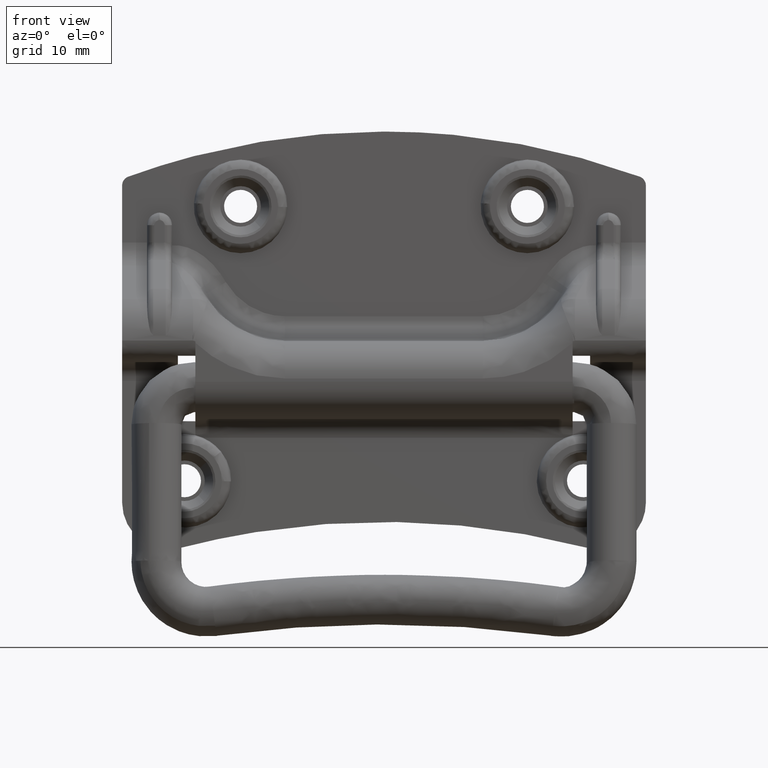
[diagram: clean part render]
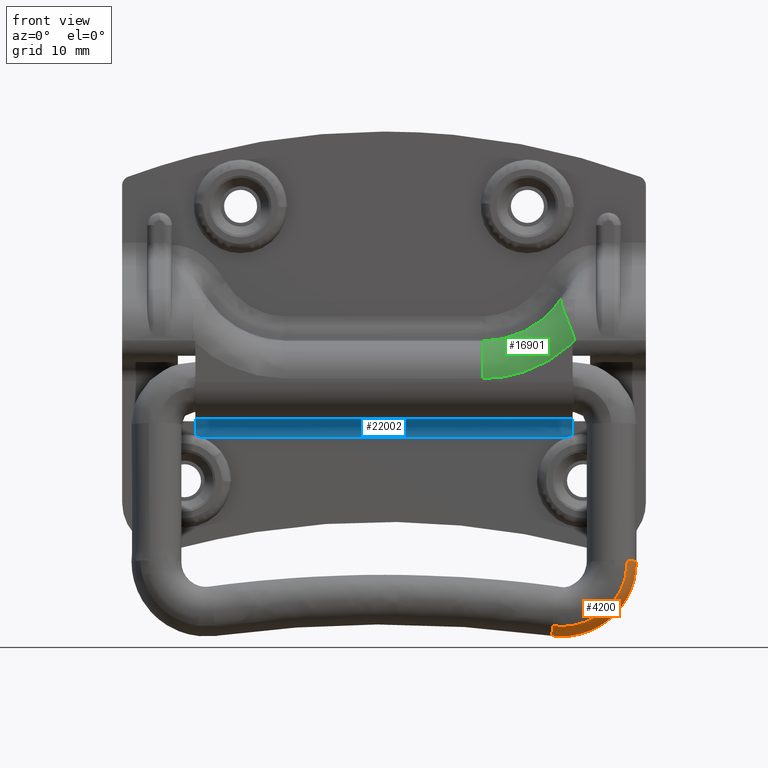
[diagram: same view with three faces highlighted in distinct colors, each labeled with its STEP entity id]
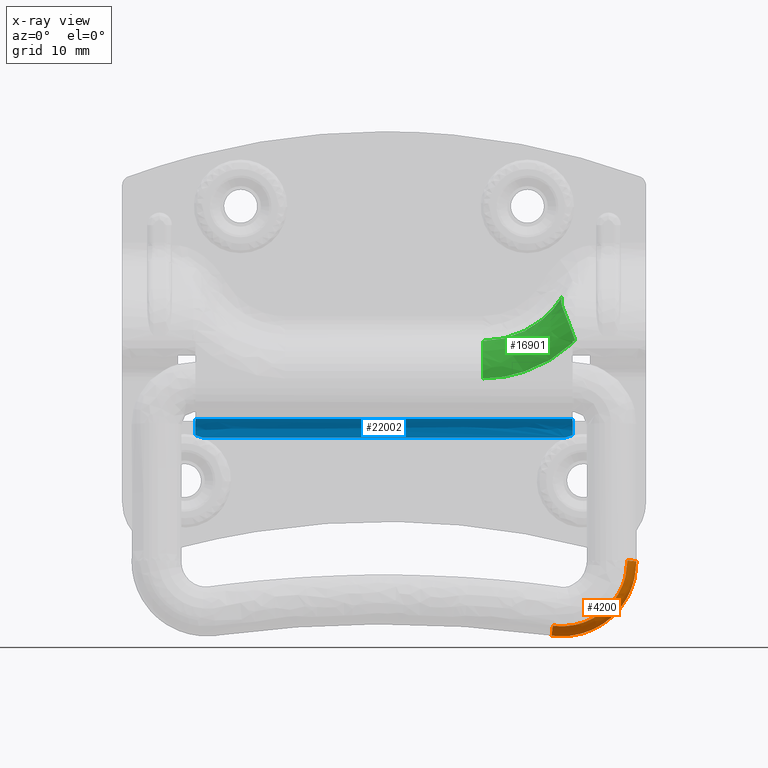
[diagram: x-ray of the same camera — body ghosted, the three highlighted faces saturated]
A machine part, front view with three faces highlighted in distinct colors.
The next image is the same camera in x-ray (body ghosted, the three faces saturated) — at least one of them is partly hidden behind the body in this view.
Their STEP definitions:

[orange] entity #4200 — the highlighted face is a freeform B-spline surface patch.
#370=CARTESIAN_POINT('',(39.046568005698873,-4.868273884451001,-27.803628752492578));
#371=VERTEX_POINT('',#370);
#379=CARTESIAN_POINT('',(40.491848355661268,-2.044662121670512,-27.984134870324731));
#380=VERTEX_POINT('',#379);
#381=CARTESIAN_POINT('',(40.491848355661268,-2.044662121670512,-27.984134870324731));
#382=CARTESIAN_POINT('',(40.463884654577818,-2.485358115274249,-27.955962327626679));
#383=CARTESIAN_POINT('',(40.298410210355968,-3.189290384835915,-27.910961778022049));
#384=CARTESIAN_POINT('',(39.775631836215723,-4.149230671410812,-27.849595305207149));
#385=CARTESIAN_POINT('',(39.335367195164913,-4.630518885659626,-27.818827807969239));
#386=CARTESIAN_POINT('',(39.046568005698873,-4.868273884451001,-27.803628752492578));
#387=B_SPLINE_CURVE_WITH_KNOTS('',3,(#381,#382,#383,#384,#385,#386),.UNSPECIFIED.,.F.,.U.,(4,1,1,4),(0.000000052922181,1.327353058861302,2.144149547443520,3.267294799860814),.UNSPECIFIED.);
#388=EDGE_CURVE('',#380,#371,#387,.T.);
#2484=CARTESIAN_POINT('',(26.886812739208501,-2.803786349880205,-39.858924079284080));
#2485=VERTEX_POINT('',#2484);
#2562=CARTESIAN_POINT('',(27.081499919456778,-5.536007033325207,-38.249206928678227));
#2563=VERTEX_POINT('',#2562);
#2564=CARTESIAN_POINT('',(26.886812739208501,-2.803786349880205,-39.858924079284080));
#2565=CARTESIAN_POINT('',(26.895812034931051,-3.842498396530935,-39.726187467713252));
#2566=CARTESIAN_POINT('',(26.962707231972001,-4.820171489100040,-39.170597999566247));
#2567=CARTESIAN_POINT('',(27.072849004278861,-5.486417950092665,-38.316143556759883));
#2568=CARTESIAN_POINT('',(27.077145593943300,-5.511491121109123,-38.282870218250082));
#2569=CARTESIAN_POINT('',(27.081499919456778,-5.536007033325207,-38.249206928678227));
#2570=B_SPLINE_CURVE_WITH_KNOTS('',3,(#2564,#2565,#2566,#2567,#2568,#2569),.UNSPECIFIED.,.F.,.U.,(4,2,4),(0.0,0.125000000000000,0.130000045329009),.UNSPECIFIED.);
#2571=EDGE_CURVE('',#2485,#2563,#2570,.T.);
#4003=CARTESIAN_POINT('',(39.046568005698873,-4.868273884451001,-27.803628752492578));
#4004=CARTESIAN_POINT('',(39.046513554098738,-4.963976716911212,-29.300708712287509));
#4005=CARTESIAN_POINT('',(38.722911846562063,-5.059603038833214,-30.796597894134258));
#4006=CARTESIAN_POINT('',(37.484555983047123,-5.233939878448324,-33.523773334448279));
#4007=CARTESIAN_POINT('',(36.570478657816132,-5.312534762076703,-34.753250716438792));
#4008=CARTESIAN_POINT('',(34.313202854340702,-5.438631607263543,-36.725826779553067));
#4009=CARTESIAN_POINT('',(32.971207005609863,-5.486061770299226,-37.467802293366447));
#4010=CARTESIAN_POINT('',(30.097967769506479,-5.541214146518877,-38.330605186502758));
#4011=CARTESIAN_POINT('',(28.568676172914451,-5.548902915559828,-38.450909374299151));
#4012=CARTESIAN_POINT('',(27.081499919456778,-5.536007033325207,-38.249206928678227));
#4013=B_SPLINE_CURVE_WITH_KNOTS('',3,(#4003,#4004,#4005,#4006,#4007,#4008,#4009,#4010,#4011,#4012),.UNSPECIFIED.,.F.,.U.,(4,2,2,2,4),(0.250956728499712,0.271613374401856,0.292270020304000,0.312926666206144,0.333583312108288),.UNSPECIFIED.);
#4014=EDGE_CURVE('',#371,#2563,#4013,.T.);
#4021=CARTESIAN_POINT('',(40.491848355661283,-2.044662121670508,-27.984134870324731));
#4022=CARTESIAN_POINT('',(40.491784727129279,-2.153441077437905,-29.685736692031419));
#4023=CARTESIAN_POINT('',(40.123993922781970,-2.262134673948198,-31.386003261646149));
#4024=CARTESIAN_POINT('',(38.716327879979403,-2.460312678025643,-34.486051892447271));
#4025=CARTESIAN_POINT('',(37.677206805136919,-2.549666281571530,-35.883787819899283));
#4026=CARTESIAN_POINT('',(35.110741610073603,-2.693040873772085,-38.126560474278868));
#4027=CARTESIAN_POINT('',(33.584753961876920,-2.746979198847470,-38.970304115639017));
#4028=CARTESIAN_POINT('',(30.317311544590378,-2.809703405644117,-39.951483093107527));
#4029=CARTESIAN_POINT('',(28.578091771242018,-2.818450100888617,-40.088305457789247));
#4030=CARTESIAN_POINT('',(26.886812739208501,-2.803786349880205,-39.858924079284080));
#4031=B_SPLINE_CURVE_WITH_KNOTS('',3,(#4021,#4022,#4023,#4024,#4025,#4026,#4027,#4028,#4029,#4030),.UNSPECIFIED.,.F.,.U.,(4,2,2,2,4),(0.250956728499712,0.271613374401856,0.292270020304000,0.312926666206144,0.333583312108288),.UNSPECIFIED.);
#4032=EDGE_CURVE('',#380,#2485,#4031,.T.);
#4039=CARTESIAN_POINT('',(40.491969785257183,-1.998990493331501,-27.782026297705901));
#4040=CARTESIAN_POINT('',(40.481915834831057,-2.183520208526782,-27.770404366539172));
#4041=CARTESIAN_POINT('',(40.435104534663608,-2.550670857743982,-27.747739897755160));
#4042=CARTESIAN_POINT('',(40.289929359996400,-3.087046107468984,-27.715962528357480));
#4043=CARTESIAN_POINT('',(40.071674610449222,-3.598709106055742,-27.686985460688909));
#4044=CARTESIAN_POINT('',(39.816469676138567,-4.022302471744887,-27.664237976351831));
#4045=CARTESIAN_POINT('',(39.590112711429647,-4.315327109653733,-27.649344595746818));
#4046=CARTESIAN_POINT('',(39.426350731009897,-4.499706239422042,-27.640341502859581));
#4047=CARTESIAN_POINT('',(39.254135834123517,-4.676254770539800,-27.631984679873518));
#4048=CARTESIAN_POINT('',(39.115986348396973,-4.799615321747100,-27.626455164508180));
#4049=CARTESIAN_POINT('',(39.019905098481637,-4.877188509195548,-27.623133806349902));
#4050=CARTESIAN_POINT('',(40.495435409713217,-2.011583460739842,-27.978637438526562));
#4051=CARTESIAN_POINT('',(40.484954783465682,-2.196020587581797,-27.966852997013351));
#4052=CARTESIAN_POINT('',(40.438627605860823,-2.563172170509287,-27.943410232433759));
#4053=CARTESIAN_POINT('',(40.293437435556193,-3.099373681849964,-27.909226783281479));
#4054=CARTESIAN_POINT('',(40.075488345013447,-3.611198711643119,-27.876646057074289));
#4055=CARTESIAN_POINT('',(39.819587655845382,-4.034351816328450,-27.849755074862529));
#4056=CARTESIAN_POINT('',(39.593252750498117,-4.327149226181737,-27.831179349911039));
#4057=CARTESIAN_POINT('',(39.429273887472327,-4.511169031299214,-27.819518645190531));
#4058=CARTESIAN_POINT('',(39.257008988497823,-4.687487262037839,-27.808355812927221));
#4059=CARTESIAN_POINT('',(39.118740709435187,-4.810563623795540,-27.800575814359430));
#4060=CARTESIAN_POINT('',(39.022936014725232,-4.888368391480111,-27.795662931384200));
#4061=CARTESIAN_POINT('',(40.493071718111757,-2.030436737970484,-28.273652274133330));
#4062=CARTESIAN_POINT('',(40.483318152951973,-2.214980121427615,-28.261609945379039));
#4063=CARTESIAN_POINT('',(40.436332550262939,-2.581900962980938,-28.237025348964739));
#4064=CARTESIAN_POINT('',(40.291737063737607,-3.118067797583538,-28.199216858500471));
#4065=CARTESIAN_POINT('',(40.073726392439347,-3.629651533641192,-28.161260434270190));
#4066=CARTESIAN_POINT('',(39.817895108963931,-4.052653336323912,-28.128119407177579));
#4067=CARTESIAN_POINT('',(39.591055916210017,-4.344722788978868,-28.104042443645710));
#4068=CARTESIAN_POINT('',(39.427231282877990,-4.528633107555865,-28.088365732804760));
#4069=CARTESIAN_POINT('',(39.255135087427277,-4.704743411917926,-28.072982827188120));
#4070=CARTESIAN_POINT('',(39.116938823269003,-4.827693120563009,-28.061804311200440));
#4071=CARTESIAN_POINT('',(39.020758023537731,-4.904869883034419,-28.054565176644040));
#4072=CARTESIAN_POINT('',(40.475373180316481,-2.055555044356746,-28.666546592609059));
#4073=CARTESIAN_POINT('',(40.465554302683820,-2.240104463954046,-28.654170912610880));
#4074=CARTESIAN_POINT('',(40.419078127990950,-2.607159428497222,-28.628023626844620));
#4075=CARTESIAN_POINT('',(40.274361626648563,-3.143244295777099,-28.585384088996150));
#4076=CARTESIAN_POINT('',(40.056280976167031,-3.653820700824900,-28.540311350540279));
#4077=CARTESIAN_POINT('',(39.801471295234840,-4.076258594035090,-28.498870772649301));
#4078=CARTESIAN_POINT('',(39.575244938076452,-4.368226784218382,-28.467412571399059));
#4079=CARTESIAN_POINT('',(39.411441312775452,-4.551722740373411,-28.446406039177671));
#4080=CARTESIAN_POINT('',(39.239362545953981,-4.727437691443883,-28.425411863310490));
#4081=CARTESIAN_POINT('',(39.101186335844183,-4.849940814424143,-28.409728187082230));
#4082=CARTESIAN_POINT('',(39.005150989739718,-4.926991401021441,-28.399344915246580));
#4083=CARTESIAN_POINT('',(40.447949271080347,-2.080633057733391,-29.058891845822341));
#4084=CARTESIAN_POINT('',(40.438264230988473,-2.265217717322901,-29.046184999576109));
#4085=CARTESIAN_POINT('',(40.392157363766522,-2.632404791210735,-29.018470245483659));
#4086=CARTESIAN_POINT('',(40.247210752336372,-3.167944445626692,-28.971040839630231));
#4087=CARTESIAN_POINT('',(40.029608085546514,-3.677953680694483,-28.918831170274000));
#4088=CARTESIAN_POINT('',(39.775527529873060,-4.099863170697086,-28.869100505043541));
#4089=CARTESIAN_POINT('',(39.550077201566772,-4.391514042651494,-28.830285857846722));
#4090=CARTESIAN_POINT('',(39.386743279189680,-4.574770762866685,-28.803945111351549));
#4091=CARTESIAN_POINT('',(39.214938318965210,-4.750110463081376,-28.777345473811870));
#4092=CARTESIAN_POINT('',(39.076919878389603,-4.872259787209640,-28.757156979694368));
#4093=CARTESIAN_POINT('',(38.981003139714332,-4.949041017970299,-28.743643249103091));
#4094=CARTESIAN_POINT('',(40.353667274159257,-2.136893479491666,-29.939043130719931));
#4095=CARTESIAN_POINT('',(40.344217649279841,-2.321567279565573,-29.925580333936612));
#4096=CARTESIAN_POINT('',(40.298500969100111,-2.688669593883134,-29.894393832116339));
#4097=CARTESIAN_POINT('',(40.153988425547233,-3.223189206573815,-29.836192379920490));
#4098=CARTESIAN_POINT('',(39.937916795918113,-3.731930951257011,-29.767968109049200));
#4099=CARTESIAN_POINT('',(39.686248996540513,-4.152765338630061,-29.699628575715309));
#4100=CARTESIAN_POINT('',(39.462949640824192,-4.443596943538272,-29.644316762082369));
#4101=CARTESIAN_POINT('',(39.300984003314099,-4.626184637195955,-29.606019993242640));
#4102=CARTESIAN_POINT('',(39.130549579750237,-4.800791983720155,-29.566840318584578));
#4103=CARTESIAN_POINT('',(38.993427988682001,-4.922232615597015,-29.536537468705571));
#4104=CARTESIAN_POINT('',(38.898116142819852,-4.998508786624626,-29.515995046488481));
#4105=CARTESIAN_POINT('',(40.073081147032227,-2.223301751502643,-31.290677601479040));
#4106=CARTESIAN_POINT('',(40.063813097469811,-2.407922014886253,-31.276059591113569));
#4107=CARTESIAN_POINT('',(40.019069198612172,-2.774680582925129,-31.239540074438921));
#4108=CARTESIAN_POINT('',(39.877822145094967,-3.307996040053661,-31.164791066259099));
#4109=CARTESIAN_POINT('',(39.666822854501198,-3.815092433863573,-31.071956128571671));
#4110=CARTESIAN_POINT('',(39.421232658400633,-4.234150521567589,-30.975042322315041));
#4111=CARTESIAN_POINT('',(39.203301009615693,-4.523415966848432,-30.894407358306569));
#4112=CARTESIAN_POINT('',(39.045214341101243,-4.704874740641400,-30.837748209741310));
#4113=CARTESIAN_POINT('',(38.878811799500390,-4.878281097019082,-30.779249056376290));
#4114=CARTESIAN_POINT('',(38.744919827627932,-4.998767335796052,-30.733411089435560));
#4115=CARTESIAN_POINT('',(38.651835536738197,-5.074371467166552,-30.702070217552599));
#4116=CARTESIAN_POINT('',(39.078525237897900,-2.396748801626729,-34.003892324592087));
#4117=CARTESIAN_POINT('',(39.070106860210693,-2.581248527769676,-33.986965606881647));
#4118=CARTESIAN_POINT('',(39.029264877801623,-2.947353526010420,-33.939743550831743));
#4119=CARTESIAN_POINT('',(38.900096837166728,-3.478519578808746,-33.831735549658362));
#4120=CARTESIAN_POINT('',(38.707177745357590,-3.982392611599096,-33.689489776853989));
#4121=CARTESIAN_POINT('',(38.482682662451701,-4.397765955438067,-33.535217103021687));
#4122=CARTESIAN_POINT('',(38.283455233389532,-4.683814707938661,-33.403753031241322));
#4123=CARTESIAN_POINT('',(38.138893514107302,-4.862940585102395,-33.310245679191752));
#4124=CARTESIAN_POINT('',(37.986720979049387,-5.033888526454627,-33.212960597175332));
#4125=CARTESIAN_POINT('',(37.864245972775272,-5.152367656914056,-33.135895986825894));
#4126=CARTESIAN_POINT('',(37.779099919864997,-5.226582489918545,-33.082857640582738));
#4127=CARTESIAN_POINT('',(36.638797863273808,-2.606585134800243,-37.285906235405221));
#4128=CARTESIAN_POINT('',(36.632251923118112,-2.790782891409740,-37.266172450019518));
#4129=CARTESIAN_POINT('',(36.600717978823120,-3.155860092393668,-37.205967313256757));
#4130=CARTESIAN_POINT('',(36.501253100335248,-3.684298768278067,-37.057659436845412));
#4131=CARTESIAN_POINT('',(36.352726422106628,-4.184332356670458,-36.855538490143132));
#4132=CARTESIAN_POINT('',(36.179916654437747,-4.595338635224867,-36.631795240021262));
#4133=CARTESIAN_POINT('',(36.026580047067533,-4.877539991668305,-36.438771206146072));
#4134=CARTESIAN_POINT('',(35.915337331188873,-5.053887623317540,-36.300623150442959));
#4135=CARTESIAN_POINT('',(35.798232716452702,-5.221923595684171,-36.156377812501752));
#4136=CARTESIAN_POINT('',(35.703990401011900,-5.338093489719468,-36.041573444959177));
#4137=CARTESIAN_POINT('',(35.638463946333736,-5.410699217939055,-35.962296645585752));
#4138=CARTESIAN_POINT('',(32.791110362682147,-2.742624854324973,-39.413311394952721));
#4139=CARTESIAN_POINT('',(32.787423958349272,-2.926437268213224,-39.391707077779337));
#4140=CARTESIAN_POINT('',(32.770374961115799,-3.290514742106581,-39.322993039076081));
#4141=CARTESIAN_POINT('',(32.717442654726050,-3.816834989566472,-39.148421237717912));
#4142=CARTESIAN_POINT('',(32.638957681740322,-4.314192852980916,-38.907431480042362));
#4143=CARTESIAN_POINT('',(32.547932524789907,-4.722407414469299,-38.638612463065577));
#4144=CARTESIAN_POINT('',(32.467302806254636,-5.002308446195656,-38.405667809809259));
#4145=CARTESIAN_POINT('',(32.408849406815257,-5.177045248571593,-38.238585610190327));
#4146=CARTESIAN_POINT('',(32.347346058924451,-5.343418759467674,-38.063893081687127));
#4147=CARTESIAN_POINT('',(32.297877590511803,-5.458279512378084,-37.924590636919397));
#4148=CARTESIAN_POINT('',(32.263496300278710,-5.529991425779977,-37.828290100469772));
#4149=CARTESIAN_POINT('',(29.784748051696251,-2.777513174621836,-39.959178693676570));
#4150=CARTESIAN_POINT('',(29.783663930555861,-2.961354353663552,-39.937157452168023));
#4151=CARTESIAN_POINT('',(29.778616082905089,-3.325394824320356,-39.866347316233977));
#4152=CARTESIAN_POINT('',(29.762836371387031,-3.851389912635066,-39.685137101994997));
#4153=CARTESIAN_POINT('',(29.739357887784809,-4.348169429872619,-39.434127275551283));
#4154=CARTESIAN_POINT('',(29.712089596262771,-4.755635345258320,-39.153692526212033));
#4155=CARTESIAN_POINT('',(29.687915332879840,-5.034813950365815,-38.910454189302548));
#4156=CARTESIAN_POINT('',(29.670383553583530,-5.209012644536875,-38.735904167089629));
#4157=CARTESIAN_POINT('',(29.651932189411379,-5.374813914810928,-38.553352706730763));
#4158=CARTESIAN_POINT('',(29.637087901074480,-5.489207422978083,-38.407726662444297));
#4159=CARTESIAN_POINT('',(29.626768956691990,-5.560594365767600,-38.307030115360277));
#4160=CARTESIAN_POINT('',(28.007237794175179,-2.779200920691623,-39.985881384263813));
#4161=CARTESIAN_POINT('',(28.007675921638501,-2.963031058152883,-39.963844828966188));
#4162=CARTESIAN_POINT('',(28.009598448240130,-3.327055744391096,-39.893027353208950));
#4163=CARTESIAN_POINT('',(28.015690160851200,-3.852997170374752,-39.711477793709932));
#4164=CARTESIAN_POINT('',(28.024707706098681,-4.349708071790976,-39.460039579615220));
#4165=CARTESIAN_POINT('',(28.035161451148920,-4.757115837703363,-39.179069798349069));
#4166=CARTESIAN_POINT('',(28.044420063661128,-5.036271994156928,-38.935340163396162));
#4167=CARTESIAN_POINT('',(28.051134021675200,-5.210449037543071,-38.760426024705581));
#4168=CARTESIAN_POINT('',(28.058200370018170,-5.376220149575575,-38.577484080281707));
#4169=CARTESIAN_POINT('',(28.063883418233381,-5.490592832505397,-38.431543536876013));
#4170=CARTESIAN_POINT('',(28.067834186579692,-5.561957407445669,-38.330622747957477));
#4171=CARTESIAN_POINT('',(27.122485626886871,-2.773744662508824,-39.900899644149384));
#4172=CARTESIAN_POINT('',(27.123656371485559,-2.957582318797525,-39.878969419198818));
#4173=CARTESIAN_POINT('',(27.129134008755159,-3.321618318823642,-39.808438272502457));
#4174=CARTESIAN_POINT('',(27.146070731870640,-3.847625605847729,-39.628070188612291));
#4175=CARTESIAN_POINT('',(27.171249384382179,-4.344424446345546,-39.378248373036207));
#4176=CARTESIAN_POINT('',(27.200469885223761,-4.751921631521280,-39.099106532640803));
#4177=CARTESIAN_POINT('',(27.226363661573259,-5.031141812920297,-38.856975192340563));
#4178=CARTESIAN_POINT('',(27.245137019711532,-5.205376425656724,-38.683219726956253));
#4179=CARTESIAN_POINT('',(27.264890665129830,-5.371218252099845,-38.501499528537281));
#4180=CARTESIAN_POINT('',(27.280783747431801,-5.485632378834144,-38.356528429976990));
#4181=CARTESIAN_POINT('',(27.291827839369400,-5.557048807499645,-38.256295061996532));
#4182=CARTESIAN_POINT('',(26.683835403651258,-2.769433154623335,-39.833658152563103));
#4183=CARTESIAN_POINT('',(26.685385827267389,-2.953272045493207,-39.811781049199134));
#4184=CARTESIAN_POINT('',(26.692569315568988,-3.317325645840913,-39.741567076713210));
#4185=CARTESIAN_POINT('',(26.714906018216610,-3.843376190101031,-39.562029450206232));
#4186=CARTESIAN_POINT('',(26.748096356664789,-4.340239681812221,-39.313462297102070));
#4187=CARTESIAN_POINT('',(26.786621035788500,-4.747811735035623,-39.035763200933573));
#4188=CARTESIAN_POINT('',(26.820761939868980,-5.027101087061932,-38.794902402790797));
#4189=CARTESIAN_POINT('',(26.845517007177481,-5.201382428630474,-38.622063307186643));
#4190=CARTESIAN_POINT('',(26.871566681372229,-5.367271524904004,-38.441304444217032));
#4191=CARTESIAN_POINT('',(26.892520639459761,-5.481742349629266,-38.297116318785811));
#4192=CARTESIAN_POINT('',(26.907083801837761,-5.553190673263483,-38.197422470161499));
#4193=B_SPLINE_SURFACE_WITH_KNOTS('',3,3,((#4039,#4050,#4061,#4072,#4083,#4094,#4105,#4116,#4127,#4138,#4149,#4160,#4171,#4182),(#4040,#4051,#4062,#4073,#4084,#4095,#4106,#4117,#4128,#4139,#4150,#4161,#4172,#4183),(#4041,#4052,#4063,#4074,#4085,#4096,#4107,#4118,#4129,#4140,#4151,#4162,#4173,#4184),(#4042,#4053,#4064,#4075,#4086,#4097,#4108,#4119,#4130,#4141,#4152,#4163,#4174,#4185),(#4043,#4054,#4065,#4076,#4087,#4098,#4109,#4120,#4131,#4142,#4153,#4164,#4175,#4186),(#4044,#4055,#4066,#4077,#4088,#4099,#4110,#4121,#4132,#4143,#4154,#4165,#4176,#4187),(#4045,#4056,#4067,#4078,#4089,#4100,#4111,#4122,#4133,#4144,#4155,#4166,#4177,#4188),(#4046,#4057,#4068,#4079,#4090,#4101,#4112,#4123,#4134,#4145,#4156,#4167,#4178,#4189),(#4047,#4058,#4069,#4080,#4091,#4102,#4113,#4124,#4135,#4146,#4157,#4168,#4179,#4190),(#4048,#4059,#4070,#4081,#4092,#4103,#4114,#4125,#4136,#4147,#4158,#4169,#4180,#4191),(#4049,#4060,#4071,#4082,#4093,#4104,#4115,#4126,#4137,#4148,#4159,#4170,#4181,#4192)),.UNSPECIFIED.,.F.,.F.,.U.,(4,1,1,1,1,1,1,1,4),(4,1,1,1,1,1,1,1,1,1,1,4),(0.0,0.555902327174305,1.111804654348611,1.667706981522916,2.223609308697222,2.594210860146759,2.779511635871527,2.964812411596296,3.335413963045833),(0.0,0.591764450407680,0.887646675611520,1.183528900815360,1.775293351223040,3.550586702446079,5.325880053669119,10.446928355498470,15.567976657327820,18.230916169416471,19.562385925460791,20.893855681505119),.UNSPECIFIED.);
#4194=ORIENTED_EDGE('',*,*,#2571,.F.);
#4195=ORIENTED_EDGE('',*,*,#4032,.F.);
#4196=ORIENTED_EDGE('',*,*,#388,.T.);
#4197=ORIENTED_EDGE('',*,*,#4014,.T.);
#4198=EDGE_LOOP('',(#4194,#4195,#4196,#4197));
#4199=FACE_OUTER_BOUND('',#4198,.T.);
#4200=ADVANCED_FACE('',(#4199),#4193,.T.);

[blue] entity #22002 — the highlighted face is a freeform B-spline surface patch.
#7297=CARTESIAN_POINT('',(-29.060612308660350,4.935900000000000,-8.100000000000000));
#7298=VERTEX_POINT('',#7297);
#7884=CARTESIAN_POINT('',(29.060612308660350,4.935900000000090,-8.100000000000000));
#7885=VERTEX_POINT('',#7884);
#21426=CARTESIAN_POINT('',(-30.249893012754502,1.935899972915650,-5.100000000000001));
#21427=VERTEX_POINT('',#21426);
#21435=CARTESIAN_POINT('',(30.250000000000000,1.935900000000090,-5.100000000000001));
#21436=VERTEX_POINT('',#21435);
#21437=CARTESIAN_POINT('',(30.250000000000000,1.935900000000090,-5.100000000000001));
#21438=CARTESIAN_POINT('',(-30.249893012754502,1.935899972915650,-5.100000000000001));
#21439=QUASI_UNIFORM_CURVE('',1,(#21437,#21438),.UNSPECIFIED.,.F.,.U.);
#21440=EDGE_CURVE('',#21436,#21427,#21439,.T.);
#21798=CARTESIAN_POINT('',(30.250000000000000,4.910050266231160,-7.707023927092680));
#21799=VERTEX_POINT('',#21798);
#21800=CARTESIAN_POINT('',(30.250000000000000,4.910050266231160,-7.707023927092680));
#21801=CARTESIAN_POINT('',(30.250000000000000,4.863208058483216,-7.350188850622066));
#21802=CARTESIAN_POINT('',(30.250000000000028,4.666693182235956,-6.741135324339998));
#21803=CARTESIAN_POINT('',(30.249999999999979,4.201132895755388,-6.097507184131783));
#21804=CARTESIAN_POINT('',(30.250000000000082,3.713956041278894,-5.660782048694603));
#21805=CARTESIAN_POINT('',(30.249999999999940,3.015075811257659,-5.241822436386391));
#21806=CARTESIAN_POINT('',(30.250000000000028,2.363350468682183,-5.099380330592159));
#21807=CARTESIAN_POINT('',(30.250000000000000,1.935900000000090,-5.100000000000001));
#21808=B_SPLINE_CURVE_WITH_KNOTS('',3,(#21800,#21801,#21802,#21803,#21804,#21805,#21806,#21807),.UNSPECIFIED.,.F.,.U.,(4,1,1,1,1,4),(0.000000281199595,1.079593619979726,1.889301314442143,2.361577187432559,3.036343493385007,4.318371298683674),.UNSPECIFIED.);
#21809=EDGE_CURVE('',#21799,#21436,#21808,.T.);
#21855=CARTESIAN_POINT('',(-30.249893012754502,4.910053658326680,-7.707049600251410));
#21856=VERTEX_POINT('',#21855);
#21862=CARTESIAN_POINT('',(-30.249893012754502,1.935899972915650,-5.100000000000001));
#21863=CARTESIAN_POINT('',(-30.249893012754470,2.295821114218027,-5.099671088592823));
#21864=CARTESIAN_POINT('',(-30.249893012754541,2.812874987665951,-5.194271331779296));
#21865=CARTESIAN_POINT('',(-30.249893012754459,3.527807736836234,-5.529580406081417));
#21866=CARTESIAN_POINT('',(-30.249893012754590,4.050844620280327,-5.929082910914240));
#21867=CARTESIAN_POINT('',(-30.249893012754320,4.628170729873500,-6.655743607151565));
#21868=CARTESIAN_POINT('',(-30.249893012754640,4.854573083219806,-7.283223645337262));
#21869=CARTESIAN_POINT('',(-30.249893012754502,4.910053658326680,-7.707049600251410));
#21870=B_SPLINE_CURVE_WITH_KNOTS('',3,(#21862,#21863,#21864,#21865,#21866,#21867,#21868,#21869),.UNSPECIFIED.,.F.,.U.,(4,1,1,1,1,4),(0.000000281208083,1.079600101247551,1.551953680446047,2.361591364539791,3.036361721691542,4.318397223688171),.UNSPECIFIED.);
#21871=EDGE_CURVE('',#21427,#21856,#21870,.T.);
#21958=CARTESIAN_POINT('',(31.762497325318868,4.934120452667386,-8.203315619378245));
#21959=CARTESIAN_POINT('',(-31.800202771206340,4.934120452667386,-8.203315619378245));
#21960=CARTESIAN_POINT('',(31.762497325318868,5.046869666388101,-4.931332151302664));
#21961=CARTESIAN_POINT('',(-31.800202771206340,5.046869666388101,-4.931332151302664));
#21962=CARTESIAN_POINT('',(31.762497325318868,1.777510341781324,-5.104184131798260));
#21963=CARTESIAN_POINT('',(-31.800202771206340,1.777510341781324,-5.104184131798260));
#21971=(BOUNDED_SURFACE()B_SPLINE_SURFACE(1,2,((#21958,#21960,#21962),(#21959,#21961,#21963)),.UNSPECIFIED.,.F.,.F.,.U.)B_SPLINE_SURFACE_WITH_KNOTS((2,2),(3,3),(0.0,63.562700096525212),(0.0,5.280126370702003),.UNSPECIFIED.)GEOMETRIC_REPRESENTATION_ITEM()RATIONAL_B_SPLINE_SURFACE(((1.0,0.675590207615660,1.0),(1.0,0.675590207615660,1.0)))REPRESENTATION_ITEM('')SURFACE());
#21972=ORIENTED_EDGE('',*,*,#21871,.T.);
#21973=CARTESIAN_POINT('',(-30.249893012754491,4.910053658326666,-7.707049600251319));
#21974=CARTESIAN_POINT('',(-30.148527084477990,4.913267523646050,-7.731374627794552));
#21975=CARTESIAN_POINT('',(-30.047447106154362,4.916466372590827,-7.757864988376389));
#21976=CARTESIAN_POINT('',(-29.845861912576488,4.922494743962798,-7.815247295128329));
#21977=CARTESIAN_POINT('',(-29.745153449507399,4.925328271689947,-7.846213874149130));
#21978=CARTESIAN_POINT('',(-29.446566574097041,4.932616569258487,-7.944935624516204));
#21979=CARTESIAN_POINT('',(-29.251577298284889,4.935900000000089,-8.018649255075411));
#21980=CARTESIAN_POINT('',(-29.060612308660311,4.935900000000090,-8.099999999999945));
#21981=B_SPLINE_CURVE_WITH_KNOTS('',3,(#21973,#21974,#21975,#21976,#21977,#21978,#21979,#21980),.UNSPECIFIED.,.F.,.U.,(4,2,2,4),(0.0,0.250000000000002,0.500000000000004,1.0),.UNSPECIFIED.);
#21982=EDGE_CURVE('',#21856,#7298,#21981,.T.);
#21983=ORIENTED_EDGE('',*,*,#21982,.T.);
#21984=CARTESIAN_POINT('',(29.060612308660350,4.935900000000090,-8.100000000000000));
#21985=CARTESIAN_POINT('',(-29.060612308660350,4.935900000000000,-8.100000000000000));
#21986=QUASI_UNIFORM_CURVE('',1,(#21984,#21985),.UNSPECIFIED.,.F.,.U.);
#21987=EDGE_CURVE('',#7885,#7298,#21986,.T.);
#21988=ORIENTED_EDGE('',*,*,#21987,.F.);
#21989=CARTESIAN_POINT('',(29.060612308660350,4.935900000000090,-8.100000000000000));
#21990=CARTESIAN_POINT('',(29.253437031302319,4.935900000000091,-8.017857012127571));
#21991=CARTESIAN_POINT('',(29.448958968146769,4.932565914197106,-7.944096770256329));
#21992=CARTESIAN_POINT('',(29.845402160699461,4.922873467850793,-7.813116886675594));
#21993=CARTESIAN_POINT('',(30.046323360006831,4.916507963519830,-7.755897544176405));
#21994=CARTESIAN_POINT('',(30.250000000000000,4.910050266231160,-7.707023927092680));
#21995=B_SPLINE_CURVE_WITH_KNOTS('',3,(#21989,#21990,#21991,#21992,#21993,#21994),.UNSPECIFIED.,.F.,.U.,(4,2,4),(0.0,0.500000000000000,1.0),.UNSPECIFIED.);
#21996=EDGE_CURVE('',#7885,#21799,#21995,.T.);
#21997=ORIENTED_EDGE('',*,*,#21996,.T.);
#21998=ORIENTED_EDGE('',*,*,#21809,.T.);
#21999=ORIENTED_EDGE('',*,*,#21440,.T.);
#22000=EDGE_LOOP('',(#21972,#21983,#21988,#21997,#21998,#21999));
#22001=FACE_OUTER_BOUND('',#22000,.T.);
#22002=ADVANCED_FACE('',(#22001),#21971,.F.);

[green] entity #16901 — the highlighted face is a freeform B-spline surface patch.
#16765=CARTESIAN_POINT('',(15.850297819041650,-5.564100000000000,1.400000000000000));
#16766=VERTEX_POINT('',#16765);
#16767=CARTESIAN_POINT('',(15.850297819041650,0.435900000000000,7.400000000000000));
#16768=VERTEX_POINT('',#16767);
#16769=CARTESIAN_POINT('',(15.850297819041650,-5.564100000000000,1.400000000000000));
#16770=CARTESIAN_POINT('',(15.850297819041630,-5.564347961755092,1.989065266471092));
#16771=CARTESIAN_POINT('',(15.850297819041710,-5.403757811240172,3.068859917352949));
#16772=CARTESIAN_POINT('',(15.850297819041600,-4.752457483273347,4.538370645722453));
#16773=CARTESIAN_POINT('',(15.850297819041680,-3.877705658922922,5.645019154448289));
#16774=CARTESIAN_POINT('',(15.850297819041630,-2.760941796148273,6.538898661550511));
#16775=CARTESIAN_POINT('',(15.850297819041741,-1.355625365530034,7.214179968120384));
#16776=CARTESIAN_POINT('',(15.850297819041440,-0.202267732856017,7.400357180217807));
#16777=CARTESIAN_POINT('',(15.850297819041650,0.435900000000000,7.400000000000000));
#16778=B_SPLINE_CURVE_WITH_KNOTS('',3,(#16769,#16770,#16771,#16772,#16773,#16774,#16775,#16776,#16777),.UNSPECIFIED.,.F.,.U.,(4,1,1,1,1,1,4),(0.000000224687303,1.767151252128850,3.239793843927657,4.785981598157399,5.964121533209135,7.510427740714077,9.424837097271649),.UNSPECIFIED.);
#16779=EDGE_CURVE('',#16766,#16768,#16778,.T.);
#16795=CARTESIAN_POINT('',(28.959919808205768,0.853122543549068,15.080591812110113));
#16796=CARTESIAN_POINT('',(24.423237678802014,0.853122543549068,6.955045828777657));
#16797=CARTESIAN_POINT('',(15.127785266355085,0.853122543549068,7.402870256914647));
#16798=CARTESIAN_POINT('',(28.541038961456827,-6.029323862771027,15.314462773605312));
#16799=CARTESIAN_POINT('',(24.149313662491515,-6.029323862771027,7.448545602195059));
#16800=CARTESIAN_POINT('',(15.150871108960327,-6.029323862771023,7.882061068883128));
#16801=CARTESIAN_POINT('',(34.550305116713325,-5.549576131501963,11.959349106990841));
#16802=CARTESIAN_POINT('',(28.079028599572784,-5.549576131501961,0.368796052793140));
#16803=CARTESIAN_POINT('',(14.819681526743839,-5.549576131501959,1.007587932616928));
#16811=(BOUNDED_SURFACE()B_SPLINE_SURFACE(2,2,((#16795,#16798,#16801),(#16796,#16799,#16802),(#16797,#16800,#16803)),.UNSPECIFIED.,.F.,.F.,.U.)B_SPLINE_SURFACE_WITH_KNOTS((3,3),(3,3),(0.0,24.396370583598280),(0.0,10.934244402331620),.UNSPECIFIED.)GEOMETRIC_REPRESENTATION_ITEM()RATIONAL_B_SPLINE_SURFACE(((0.852336263034195,0.559324320690863,0.852336327438978),(0.724919904297762,0.475710527184697,0.724919959074629),(0.853412266892812,0.560030421268045,0.853412331378901)))REPRESENTATION_ITEM('')SURFACE());
#16812=CARTESIAN_POINT('',(28.420728216085848,-1.618538957976145,13.568438494983321));
#16813=VERTEX_POINT('',#16812);
#16814=CARTESIAN_POINT('',(28.579726657142398,0.435900000000119,14.465162795889960));
#16815=VERTEX_POINT('',#16814);
#16816=CARTESIAN_POINT('',(28.420728216085848,-1.618538957976145,13.568438494983321));
#16817=CARTESIAN_POINT('',(28.389776668445549,-1.280703699690301,13.738552170233749));
#16818=CARTESIAN_POINT('',(28.389560637060491,-0.940263520670080,13.897248122335119));
#16819=CARTESIAN_POINT('',(28.443774891978631,-0.255139491404271,14.195228215355121));
#16820=CARTESIAN_POINT('',(28.498272976751760,0.089548400381367,14.334491075543021));
#16821=CARTESIAN_POINT('',(28.579726657142398,0.435900000000119,14.465162795889960));
#16822=B_SPLINE_CURVE_WITH_KNOTS('',3,(#16816,#16817,#16818,#16819,#16820,#16821),.UNSPECIFIED.,.F.,.U.,(4,2,4),(0.0,0.500000000000000,1.0),.UNSPECIFIED.);
#16823=EDGE_CURVE('',#16813,#16815,#16822,.T.);
#16824=ORIENTED_EDGE('',*,*,#16823,.T.);
#16825=CARTESIAN_POINT('',(15.850297819041650,0.435900000000000,7.400000000000000));
#16826=CARTESIAN_POINT('',(16.721170617816810,0.435900000000004,7.399960021892788));
#16827=CARTESIAN_POINT('',(18.740075840407851,0.435900000000017,7.576134968170603));
#16828=CARTESIAN_POINT('',(21.528249343584928,0.435900000000037,8.405024103792957));
#16829=CARTESIAN_POINT('',(24.191582904040480,0.435900000000063,9.828697640356875));
#16830=CARTESIAN_POINT('',(26.579284880061248,0.435900000000088,11.747313002890190));
#16831=CARTESIAN_POINT('',(27.951730003647569,0.435900000000108,13.457199998896250));
#16832=CARTESIAN_POINT('',(28.579726657142398,0.435900000000119,14.465162795889960));
#16833=B_SPLINE_CURVE_WITH_KNOTS('',3,(#16825,#16826,#16827,#16828,#16829,#16830,#16831,#16832),.UNSPECIFIED.,.F.,.U.,(4,1,1,1,1,4),(0.000000060345148,2.612644211700825,6.056616200682507,8.669223331205739,11.638152494064331,15.200850174101660),.UNSPECIFIED.);
#16834=EDGE_CURVE('',#16768,#16815,#16833,.T.);
#16835=ORIENTED_EDGE('',*,*,#16834,.F.);
#16836=ORIENTED_EDGE('',*,*,#16779,.F.);
#16837=CARTESIAN_POINT('',(30.250000000000000,-5.564100000000000,7.114432391968460));
#16838=VERTEX_POINT('',#16837);
#16839=CARTESIAN_POINT('',(30.250000000000000,-5.564100000000000,7.114432391968460));
#16840=CARTESIAN_POINT('',(29.407928562272058,-5.564100000000000,6.321036829879879));
#16841=CARTESIAN_POINT('',(27.786692030657878,-5.564100000000001,5.029073242620614));
#16842=CARTESIAN_POINT('',(24.992505650724251,-5.564100000000006,3.409224660611661));
#16843=CARTESIAN_POINT('',(22.371949785593941,-5.564099999999997,2.369311057486251));
#16844=CARTESIAN_POINT('',(19.238487019375221,-5.564100000000005,1.595799970931043));
#16845=CARTESIAN_POINT('',(17.172549756518979,-5.564099999999996,1.399852589859930));
#16846=CARTESIAN_POINT('',(15.850297819041650,-5.564100000000000,1.400000000000000));
#16847=B_SPLINE_CURVE_WITH_KNOTS('',3,(#16839,#16840,#16841,#16842,#16843,#16844,#16845,#16846),.UNSPECIFIED.,.F.,.U.,(4,1,1,1,1,4),(0.000000011516249,3.470892664762785,6.198044622529753,9.668914580979852,11.900219396874091,15.866959191993420),.UNSPECIFIED.);
#16848=EDGE_CURVE('',#16838,#16766,#16847,.T.);
#16849=ORIENTED_EDGE('',*,*,#16848,.F.);
#16850=CARTESIAN_POINT('',(30.250000000000000,-5.561401442070160,7.362585942155191));
#16851=VERTEX_POINT('',#16850);
#16852=CARTESIAN_POINT('',(30.250000000000000,-5.561401442070160,7.362585942155191));
#16853=CARTESIAN_POINT('',(30.250000000000011,-5.562026557688331,7.279865850368197));
#16854=CARTESIAN_POINT('',(30.250000000000011,-5.564483148585385,7.197160720710294));
#16855=CARTESIAN_POINT('',(30.250000000000000,-5.564100000000000,7.114432391968460));
#16856=B_SPLINE_CURVE_WITH_KNOTS('',3,(#16852,#16853,#16854,#16855),.UNSPECIFIED.,.F.,.U.,(4,4),(0.000000145216767,0.248172640637770),.UNSPECIFIED.);
#16857=EDGE_CURVE('',#16851,#16838,#16856,.T.);
#16858=ORIENTED_EDGE('',*,*,#16857,.F.);
#16859=CARTESIAN_POINT('',(30.648827694703350,-5.564099999999955,7.500217671934440));
#16860=VERTEX_POINT('',#16859);
#16861=CARTESIAN_POINT('',(30.648827694703350,-5.564099999999955,7.500217671934440));
#16862=CARTESIAN_POINT('',(30.449663609861179,-5.564090138951007,7.430651785934893));
#16863=CARTESIAN_POINT('',(30.250000000000000,-5.561401442070160,7.362585942155191));
#16864=B_SPLINE_CURVE_WITH_KNOTS('',2,(#16861,#16862,#16863),.UNSPECIFIED.,.F.,.U.,(3,3),(-2.164935E-015,0.421921963392649),.UNSPECIFIED.);
#16865=EDGE_CURVE('',#16860,#16851,#16864,.T.);
#16866=ORIENTED_EDGE('',*,*,#16865,.F.);
#16867=CARTESIAN_POINT('',(30.648827694703350,-5.564099999999955,7.500217671934440));
#16868=CARTESIAN_POINT('',(30.635799841627328,-5.564099999999954,7.539709371955941));
#16869=CARTESIAN_POINT('',(30.622609791947930,-5.563751360668681,7.579530542568901));
#16870=CARTESIAN_POINT('',(30.596148145347271,-5.562352760096434,7.658845086637070));
#16871=CARTESIAN_POINT('',(30.556256073457011,-5.559204967287669,7.777691525603481));
#16872=CARTESIAN_POINT('',(30.515783451148600,-5.552907826161811,7.896168089035028));
#16873=CARTESIAN_POINT('',(30.434111482150300,-5.536101221962561,8.132643507558887));
#16874=CARTESIAN_POINT('',(30.378590370012539,-5.519223048805950,8.289935527564277));
#16875=CARTESIAN_POINT('',(30.211099991481490,-5.452234554927578,8.755603848988807));
#16876=CARTESIAN_POINT('',(30.097781998117838,-5.385837567340663,9.059054237742336));
#16877=CARTESIAN_POINT('',(29.870171666836551,-5.210146364460520,9.653024920310314));
#16878=CARTESIAN_POINT('',(29.755863708056250,-5.100855646306302,9.943540294452198));
#16879=CARTESIAN_POINT('',(29.585622110524870,-4.903367289394826,10.369954309110170));
#16880=CARTESIAN_POINT('',(29.529014506396571,-4.831800634216728,10.510692342277331));
#16881=CARTESIAN_POINT('',(29.417761385538000,-4.678672280150106,10.786214737762039));
#16882=CARTESIAN_POINT('',(29.362976010127191,-4.596965774711348,10.921350751713829));
#16883=CARTESIAN_POINT('',(29.201756187123419,-4.336275664673089,11.319048054785750));
#16884=CARTESIAN_POINT('',(29.100128169352139,-4.144515119277070,11.569772702079881));
#16885=CARTESIAN_POINT('',(28.911527822498869,-3.726442676369300,12.044568984862810));
#16886=CARTESIAN_POINT('',(28.824527335657319,-3.500110181796909,12.268656625095179));
#16887=CARTESIAN_POINT('',(28.727392214580071,-3.195213340092356,12.532759147276520));
#16888=CARTESIAN_POINT('',(28.708549456328711,-3.133130384644720,12.584776431929770));
#16889=CARTESIAN_POINT('',(28.672110403845270,-3.006729565090013,12.687208955612441));
#16890=CARTESIAN_POINT('',(28.654486207526539,-2.942300975657261,12.737706792017519));
#16891=CARTESIAN_POINT('',(28.603841506616462,-2.746513592245157,12.886119268751081));
#16892=CARTESIAN_POINT('',(28.573074570600198,-2.612825183327652,12.980855683465510));
#16893=CARTESIAN_POINT('',(28.490390688438129,-2.202492634151235,13.252981795945400));
#16894=CARTESIAN_POINT('',(28.448029445189629,-1.916620672997179,13.418334180530300));
#16895=CARTESIAN_POINT('',(28.420728216085848,-1.618538957976145,13.568438494983321));
#16896=B_SPLINE_CURVE_WITH_KNOTS('',3,(#16867,#16868,#16869,#16870,#16871,#16872,#16873,#16874,#16875,#16876,#16877,#16878,#16879,#16880,#16881,#16882,#16883,#16884,#16885,#16886,#16887,#16888,#16889,#16890,#16891,#16892,#16893,#16894,#16895),.UNSPECIFIED.,.F.,.U.,(4,2,1,2,2,2,2,2,2,2,2,2,2,2,4),(0.0,0.015625000000000,0.031250000000000,0.062499999999999,0.124999999999999,0.250000000000000,0.375000000000000,0.437500000000000,0.500000000000000,0.625000000000000,0.750000000000000,0.781250000000000,0.812500000000000,0.875000000000000,1.0),.UNSPECIFIED.);
#16897=EDGE_CURVE('',#16860,#16813,#16896,.T.);
#16898=ORIENTED_EDGE('',*,*,#16897,.T.);
#16899=EDGE_LOOP('',(#16824,#16835,#16836,#16849,#16858,#16866,#16898));
#16900=FACE_OUTER_BOUND('',#16899,.T.);
#16901=ADVANCED_FACE('',(#16900),#16811,.T.);